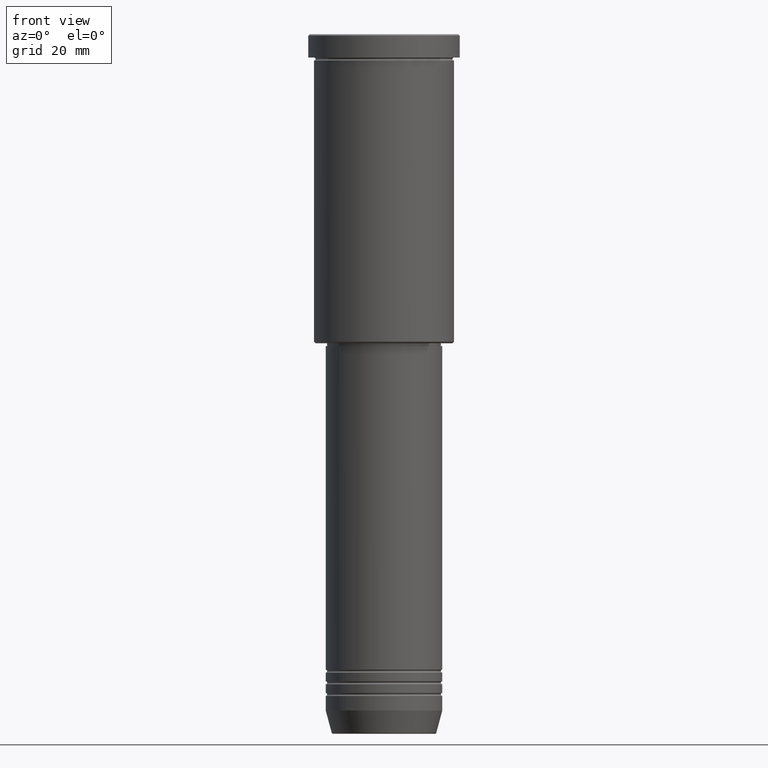
[diagram: clean part render]
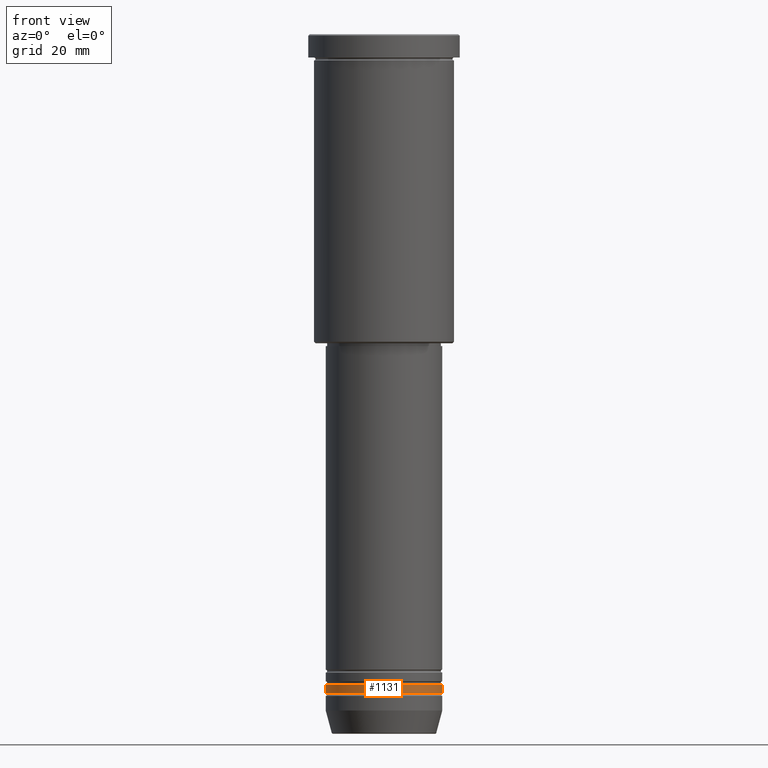
[diagram: same view with one face highlighted and labeled with its STEP entity id]
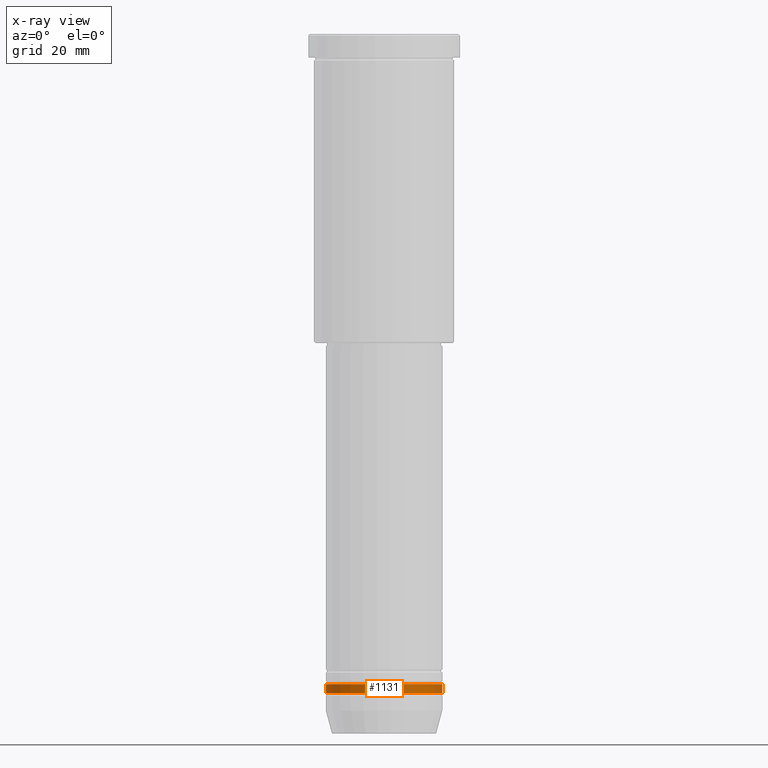
[diagram: x-ray of the same camera — body ghosted, the highlighted face saturated]
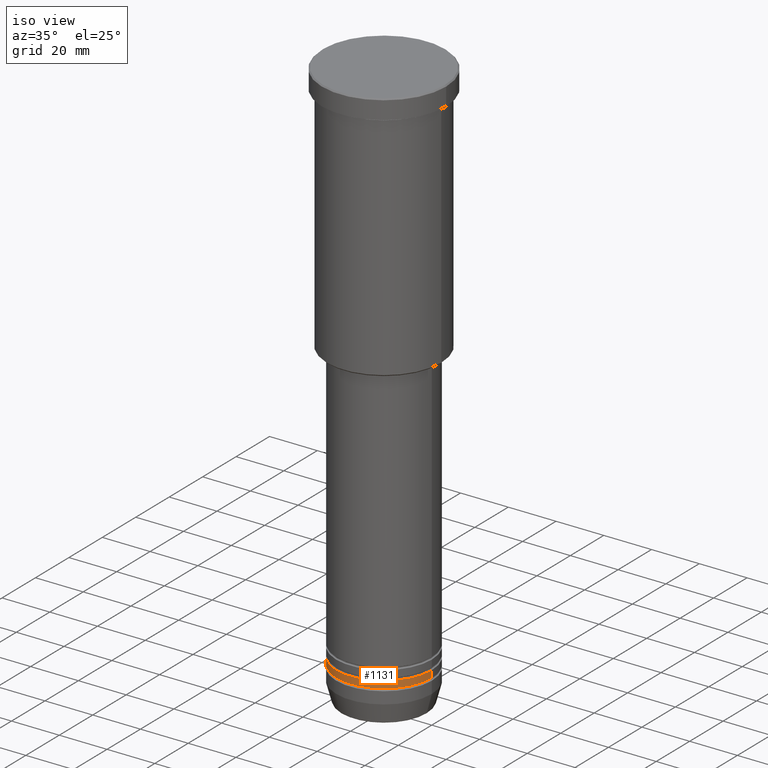
[diagram: same view with one face highlighted and labeled with its STEP entity id]
A machine part, front view. The second image highlights one B-rep face of the part: STEP entity #1131.
The next image is the same camera in x-ray: the body ghosted, the highlighted face saturated — about 0% of this face is hidden behind the body in this view.
A second angle (iso view) of the same face is appended — the face is thin or edge-on in the first view.
In plain terms, the highlighted cylindrical surface (partial cylindrical patch) has radius 20 mm, axis along (-0, -0, 1).
Its self-contained STEP definition (entity closure, byte-faithful):
#48 = FACE_OUTER_BOUND ( 'NONE', #344, .T. ) ;
#53 = CARTESIAN_POINT ( 'NONE',  ( 20.00000000000000355, 0.000000000000000000, 0.000000000000000000 ) ) ;
#102 = EDGE_CURVE ( 'NONE', #1041, #904, #347, .T. ) ;
#158 = VECTOR ( 'NONE', #778, 1000.000000000000000 ) ;
#168 = CARTESIAN_POINT ( 'NONE',  ( 20.00000000000000355, 0.000000000000000000, -225.9999999999999716 ) ) ;
#170 = EDGE_CURVE ( 'NONE', #520, #1041, #434, .T. ) ;
#174 = DIRECTION ( 'NONE',  ( -0.000000000000000000, -0.000000000000000000, 1.000000000000000000 ) ) ;
#305 = ORIENTED_EDGE ( 'NONE', *, *, #764, .F. ) ;
#309 = DIRECTION ( 'NONE',  ( -0.000000000000000000, -0.000000000000000000, 1.000000000000000000 ) ) ;
#332 = DIRECTION ( 'NONE',  ( 1.000000000000000000, 0.000000000000000000, 0.000000000000000000 ) ) ;
#335 = CIRCLE ( 'NONE', #582, 20.00000000000000000 ) ;
#344 = EDGE_LOOP ( 'NONE', ( #305, #1160, #718, #674 ) ) ;
#347 = LINE ( 'NONE', #53, #158 ) ;
#356 = DIRECTION ( 'NONE',  ( -0.000000000000000000, -0.000000000000000000, 1.000000000000000000 ) ) ;
#366 = CARTESIAN_POINT ( 'NONE',  ( 0.000000000000000000, 0.000000000000000000, -225.9999999999999716 ) ) ;
#373 = EDGE_CURVE ( 'NONE', #1118, #904, #335, .T. ) ;
#384 = CARTESIAN_POINT ( 'NONE',  ( -20.00000000000000000, 2.449293598294706513E-15, -223.0000000000000000 ) ) ;
#405 = CARTESIAN_POINT ( 'NONE',  ( -20.00000000000000355, 2.449293598294706907E-15, -225.9999999999999716 ) ) ;
#434 = CIRCLE ( 'NONE', #689, 20.00000000000000355 ) ;
#520 = VERTEX_POINT ( 'NONE', #405 ) ;
#559 = AXIS2_PLACEMENT_3D ( 'NONE', #1146, #684, #1049 ) ;
#582 = AXIS2_PLACEMENT_3D ( 'NONE', #1141, #356, #332 ) ;
#674 = ORIENTED_EDGE ( 'NONE', *, *, #373, .F. ) ;
#684 = DIRECTION ( 'NONE',  ( -0.000000000000000000, -0.000000000000000000, 1.000000000000000000 ) ) ;
#689 = AXIS2_PLACEMENT_3D ( 'NONE', #366, #174, #808 ) ;
#718 = ORIENTED_EDGE ( 'NONE', *, *, #102, .T. ) ;
#764 = EDGE_CURVE ( 'NONE', #520, #1118, #1135, .T. ) ;
#778 = DIRECTION ( 'NONE',  ( -0.000000000000000000, -0.000000000000000000, 1.000000000000000000 ) ) ;
#808 = DIRECTION ( 'NONE',  ( 1.000000000000000000, 0.000000000000000000, 0.000000000000000000 ) ) ;
#904 = VERTEX_POINT ( 'NONE', #1179 ) ;
#940 = VECTOR ( 'NONE', #309, 1000.000000000000000 ) ;
#1041 = VERTEX_POINT ( 'NONE', #168 ) ;
#1049 = DIRECTION ( 'NONE',  ( 1.000000000000000000, 0.000000000000000000, 0.000000000000000000 ) ) ;
#1061 = CYLINDRICAL_SURFACE ( 'NONE', #559, 20.00000000000000355 ) ;
#1118 = VERTEX_POINT ( 'NONE', #384 ) ;
#1123 = CARTESIAN_POINT ( 'NONE',  ( -20.00000000000000355, 2.449293598294706907E-15, 0.000000000000000000 ) ) ;
#1131 = ADVANCED_FACE ( 'NONE', ( #48 ), #1061, .T. ) ;
#1135 = LINE ( 'NONE', #1123, #940 ) ;
#1141 = CARTESIAN_POINT ( 'NONE',  ( 0.000000000000000000, 0.000000000000000000, -223.0000000000000000 ) ) ;
#1146 = CARTESIAN_POINT ( 'NONE',  ( 0.000000000000000000, 0.000000000000000000, 0.000000000000000000 ) ) ;
#1160 = ORIENTED_EDGE ( 'NONE', *, *, #170, .T. ) ;
#1179 = CARTESIAN_POINT ( 'NONE',  ( 20.00000000000000000, 0.000000000000000000, -223.0000000000000000 ) ) ;